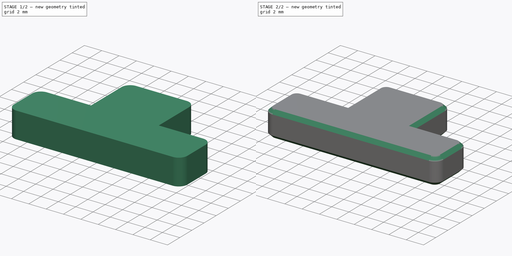
[diagram: build sequence overview — one tinted view per stage of 2, left to right]
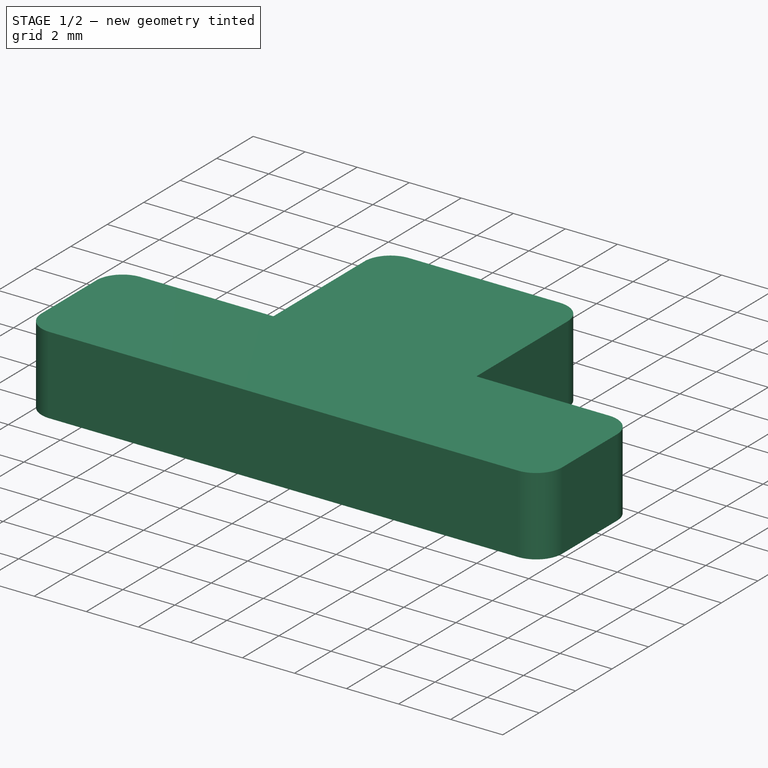
[diagram: stage 1 of 2 — iso view after this stage's code; geometry added in this stage tinted green]
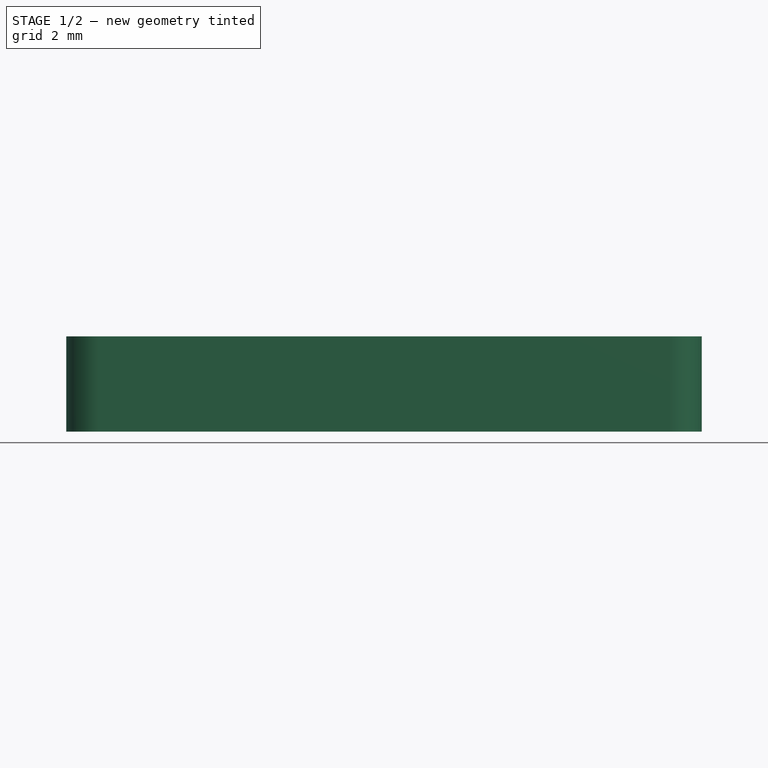
[diagram: stage 1 of 2 — front view after this stage's code; geometry added in this stage tinted green]
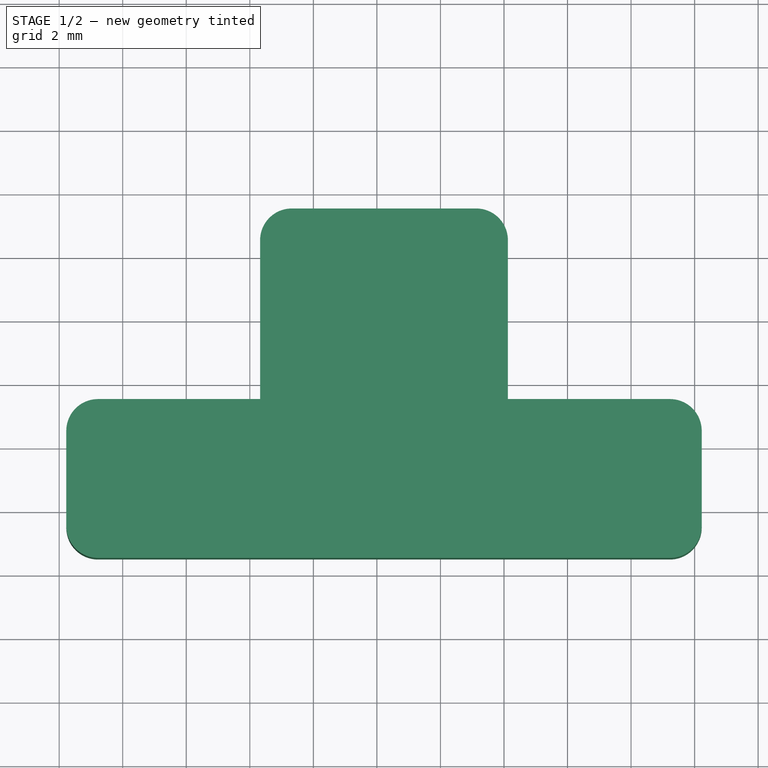
[diagram: stage 1 of 2 — top view after this stage's code; geometry added in this stage tinted green]
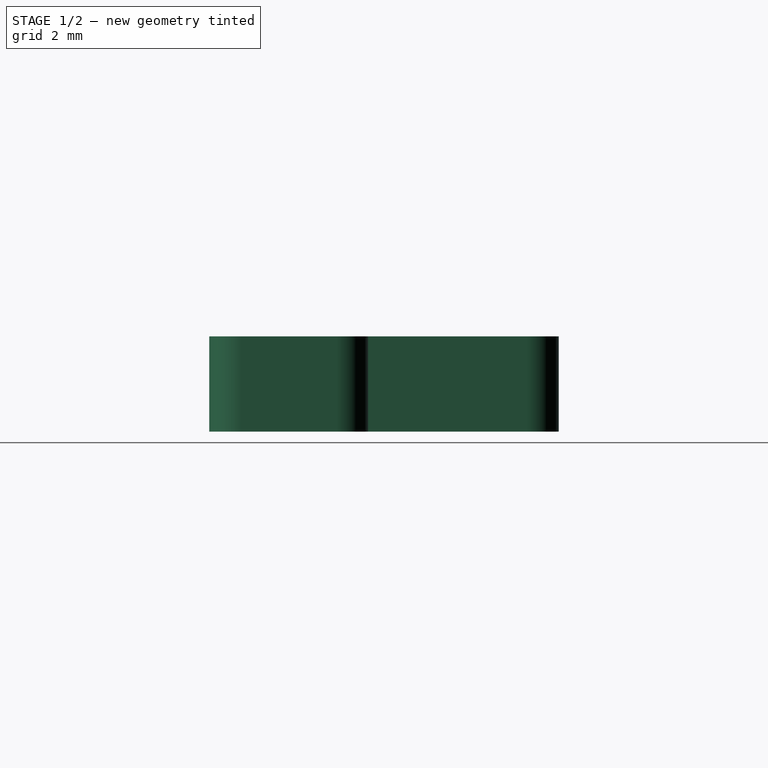
[diagram: stage 1 of 2 — right view after this stage's code; geometry added in this stage tinted green]
FCSTD DOCUMENT  (FreeCAD 0.19R24291 (Git))
Label: z-rail-spacer
License: Other
LicenseURL: GPL3
objects: Sketcher::SketchObject×1, PartDesign::Pad×1, PartDesign::Fillet×1, PartDesign::Chamfer×1, PartDesign::Body×1
note: 8 computed .brp shape members not serialized (recipe doc carries the construction recipe); baked Part::Feature solids carry a one-line shape summary decoded from their .brp

FEATURE [Sketcher::SketchObject] Sketch
  FullyConstrained = false
  MapMode = 5
  Support = -> [XY_Plane]
  sketch-geometry (8):
    g0: LineSegment StartX=4.32405 StartY=21.516 StartZ=0 EndX=4.32405 EndY=27.516 EndZ=0
    g1: LineSegment StartX=4.32405 StartY=27.516 StartZ=0 EndX=12.1241 EndY=27.516 EndZ=0
    g2: LineSegment StartX=12.1241 StartY=27.516 StartZ=0 EndX=12.1241 EndY=21.516 EndZ=0
    g3: LineSegment StartX=12.1241 StartY=21.516 StartZ=0 EndX=18.2241 EndY=21.516 EndZ=0
    g4: LineSegment StartX=18.2241 StartY=21.516 StartZ=0 EndX=18.2241 EndY=16.516 EndZ=0
    g5: LineSegment StartX=18.2241 StartY=16.516 StartZ=0 EndX=-1.77595 EndY=16.516 EndZ=0
    g6: LineSegment StartX=-1.77595 StartY=16.516 StartZ=0 EndX=-1.77595 EndY=21.516 EndZ=0
    g7: LineSegment StartX=-1.77595 StartY=21.516 StartZ=0 EndX=4.32405 EndY=21.516 EndZ=0
  constraints (22):
    c: Vertical(g0)
    c: Coincident(g0,g1)
    c: Horizontal(g1)
    c: Coincident(g1,g2)
    c: Vertical(g2)
    c: Coincident(g2,g3)
    c: Coincident(g3,g4)
    c: Vertical(g4)
    c: Coincident(g4,g5)
    c: Horizontal(g5)
    c: Coincident(g5,g6)
    c: Coincident(g6,g7)
    c: Coincident(g7,g0)
    c: Horizontal(g3)
    c: Horizontal(g7)
    c: Vertical(g6)
    c: Horizontal(g0,g2)
    c: DistanceY(g4,g4) = 5
    c: DistanceY(g2,g2) = 6
    c: DistanceX(g1,g1) = 7.8
    c: DistanceX(g5,g5) = 20
    c: DistanceX(g3,g3) = 6.1
FEATURE [PartDesign::Pad] Pad
  Direction = (1,1,1)
  Length = 3
  Length2 = 100
  Profile = -> Sketch
  Type = 0
FEATURE [PartDesign::Fillet] Fillet
  Base = -> Pad [Edge11,Edge5,Edge2,Edge14,Edge20,Edge17]
  BaseFeature = -> Pad
  Radius = 1
  SupportTransform = false
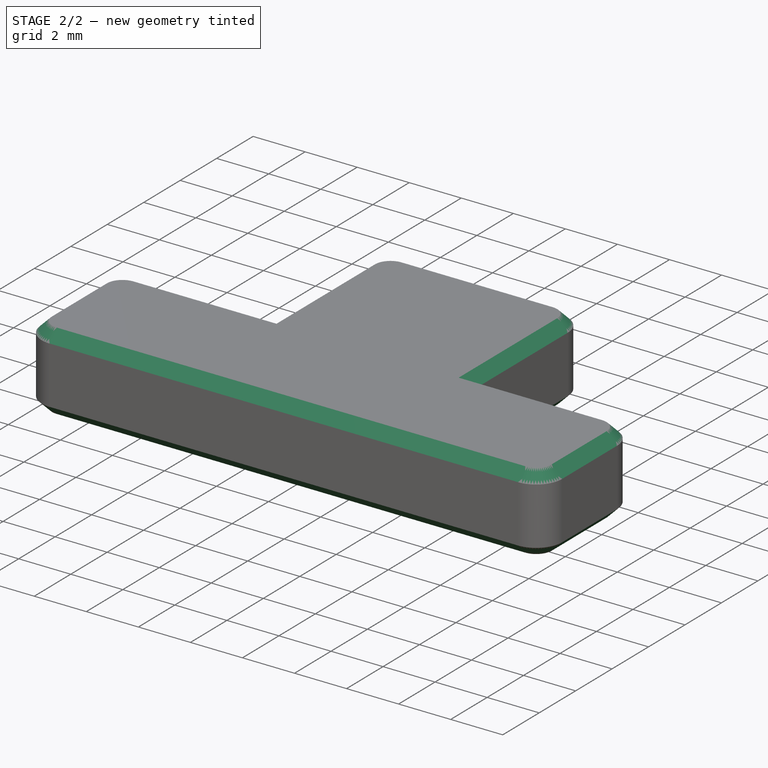
[diagram: stage 2 of 2 — iso view after this stage's code; geometry added in this stage tinted green]
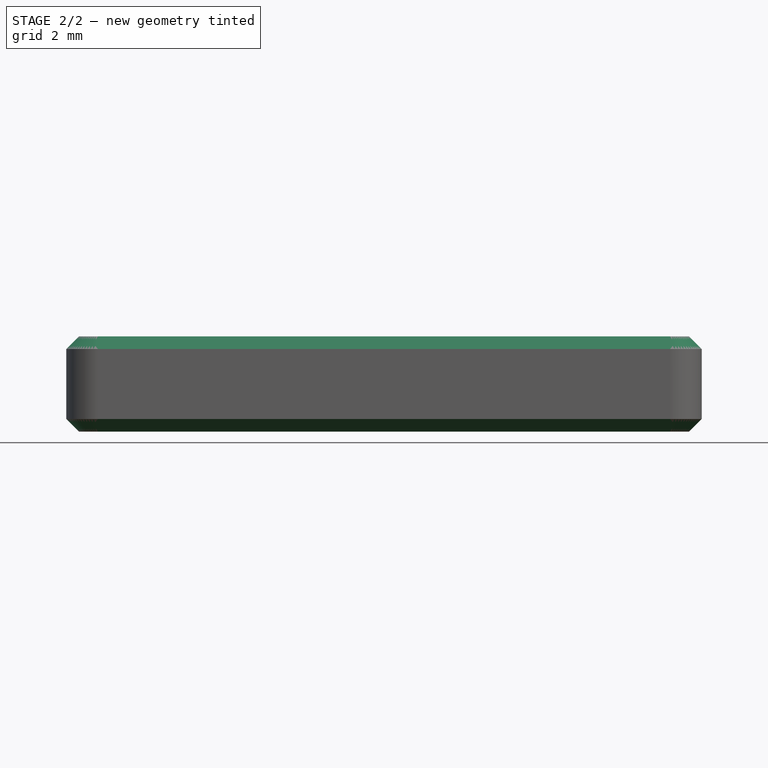
[diagram: stage 2 of 2 — front view after this stage's code; geometry added in this stage tinted green]
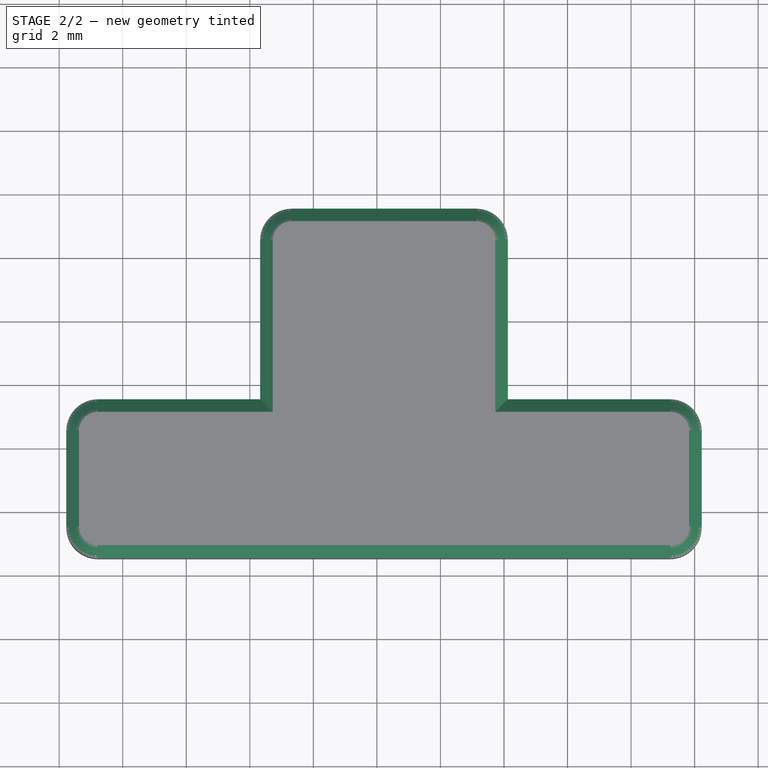
[diagram: stage 2 of 2 — top view after this stage's code; geometry added in this stage tinted green]
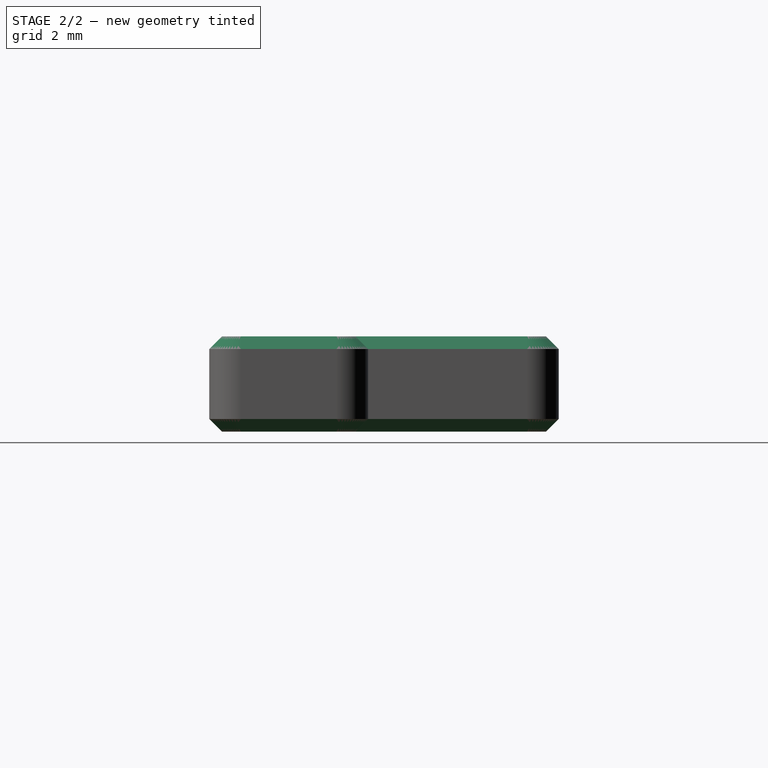
[diagram: stage 2 of 2 — right view after this stage's code; geometry added in this stage tinted green]
FEATURE [PartDesign::Chamfer] Chamfer
  Angle = 45
  Base = -> Fillet [Face5,Face2]
  BaseFeature = -> Fillet
  ChamferType = 0
  FlipDirection = false
  Size = 0.4
  Size2 = 1
  SupportTransform = false
FEATURE [PartDesign::Body] Body
  Group = -> [Sketch,Pad,Fillet,Chamfer]
  Origin = -> Origin
  Tip = -> Chamfer
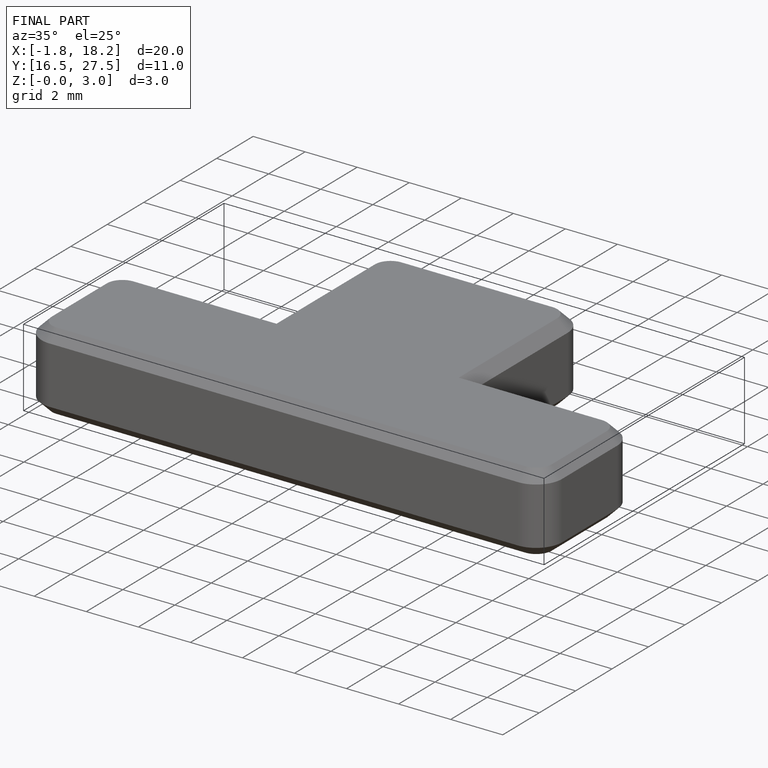
[diagram: finished part — iso view with bounding-box wireframe]
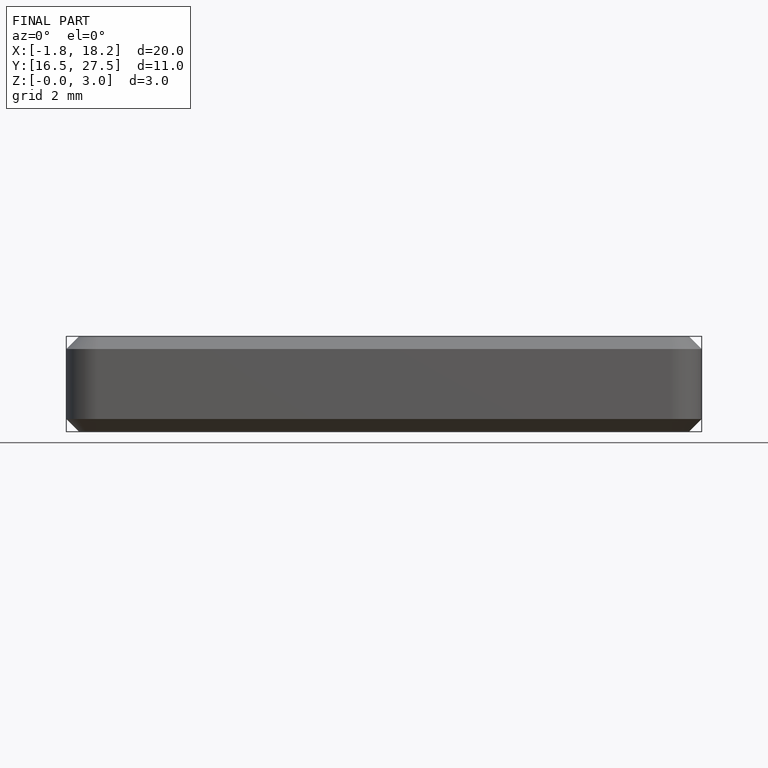
[diagram: finished part — front view with bounding-box wireframe]
